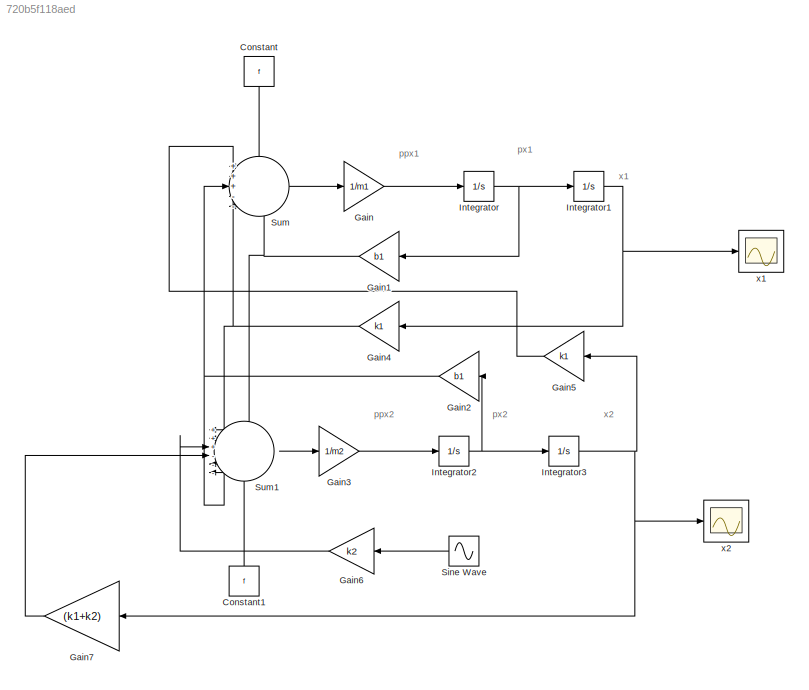
MODEL slx_720b5f118aed
KIND model
CONFIG AbsTol = auto
CONFIG EnableMultiTasking = off
CONFIG FixedStep = auto
CONFIG InitFcn = m1 = 290;\nb1 = 1000;\nm2 = 59;\nk1 = 16182;\nf = 0;\nk2 = 19000;\n
CONFIG MaxStep = auto
CONFIG MinStep = auto
CONFIG RelTol = 1e-3
CONFIG SampleTimeConstraint = Unconstrained
CONFIG SolverName = VariableStepAuto
CONFIG StartTime = 0.0
CONFIG StopTime = 10
BLOCK [Constant] Constant
  NameLocation = left
  Value = f
BLOCK [Constant] Constant1
  NameLocation = right
  Value = f
BLOCK [Gain] Gain
  Gain = 1/m1
BLOCK [Gain] Gain1
  Gain = b1
  NameLocation = top
BLOCK [Gain] Gain2
  Gain = b1
  NameLocation = top
BLOCK [Gain] Gain3
  Gain = 1/m2
BLOCK [Gain] Gain4
  Gain = k1
  NameLocation = top
BLOCK [Gain] Gain5
  Gain = k1
  NameLocation = top
BLOCK [Gain] Gain6
  Gain = k2
  NameLocation = top
BLOCK [Gain] Gain7
  Gain = (k1+k2)
  NameLocation = top
BLOCK [Integrator] Integrator
BLOCK [Integrator] Integrator1
BLOCK [Integrator] Integrator2
BLOCK [Integrator] Integrator3
BLOCK [Sin] Sine Wave
  Amplitude = 0.05
  Frequency = 0.5*pi
  NameLocation = top
  SampleTime = 0
BLOCK [Sum] Sum
  Inputs = +++--
BLOCK [Sum] Sum1
  Inputs = +++---
BLOCK [Scope] x1
  Floating = off
  NumInputPorts = 1
  ScopeSpecificationString = Simulink.scopes.TimeScopeBlockCfg('CurrentConfiguration', extmgr.ConfigurationSet(extmgr.Configuration('Core','General UI',true),extmgr.Configuration('Core','Source UI',true),extmgr.Configuration('Sources','WiredSimulink',true),extmgr.Configuration('Visuals','Time Domain',true,'SerializedDisplays',{struct('MinYLimReal','-0.07016','MaxYLimReal','0.08038','YLabelReal','','MinYLimMag','0.00000','MaxY...<+1450ch>
BLOCK [Scope] x2
  Floating = off
  NumInputPorts = 1
  ScopeSpecificationString = Simulink.scopes.TimeScopeBlockCfg('CurrentConfiguration', extmgr.ConfigurationSet(extmgr.Configuration('Core','General UI',true),extmgr.Configuration('Core','Source UI',true),extmgr.Configuration('Sources','WiredSimulink',true,'DataLoggingVariableName','ScopeData1'),extmgr.Configuration('Visuals','Time Domain',true,'SerializedDisplays',{struct('MinYLimReal','-0.06637','MaxYLimReal','0.07082','YLab...<+1489ch>
ANNOTATION (root): ppx1
ANNOTATION (root): ppx2
ANNOTATION (root): px1
ANNOTATION (root): px2
ANNOTATION (root): x1
ANNOTATION (root): x2
LINE Constant1:1 -> Sum1:6
LINE Constant:1 -> Sum:1
NET Gain1:1 -> Sum1:1, Sum:5
NET Gain2:1 -> Sum1:5, Sum:3
LINE Gain3:1 -> Integrator2:1
NET Gain4:1 -> Sum1:2, Sum:4
LINE Gain5:1 -> Sum:2
LINE Gain6:1 -> Sum1:3
LINE Gain7:1 -> Sum1:4
LINE Gain:1 -> Integrator:1
NET Integrator1:1 -> Gain4:1, x1:1
NET Integrator2:1 -> Gain2:1, Integrator3:1
NET Integrator3:1 -> Gain5:1, Gain7:1, x2:1
NET Integrator:1 -> Gain1:1, Integrator1:1
LINE Sine Wave:1 -> Gain6:1
LINE Sum1:1 -> Gain3:1
LINE Sum:1 -> Gain:1
note: NET lines group one-source signal fan-out (src -> all destinations, sorted); 1:1 wires keep LINE
